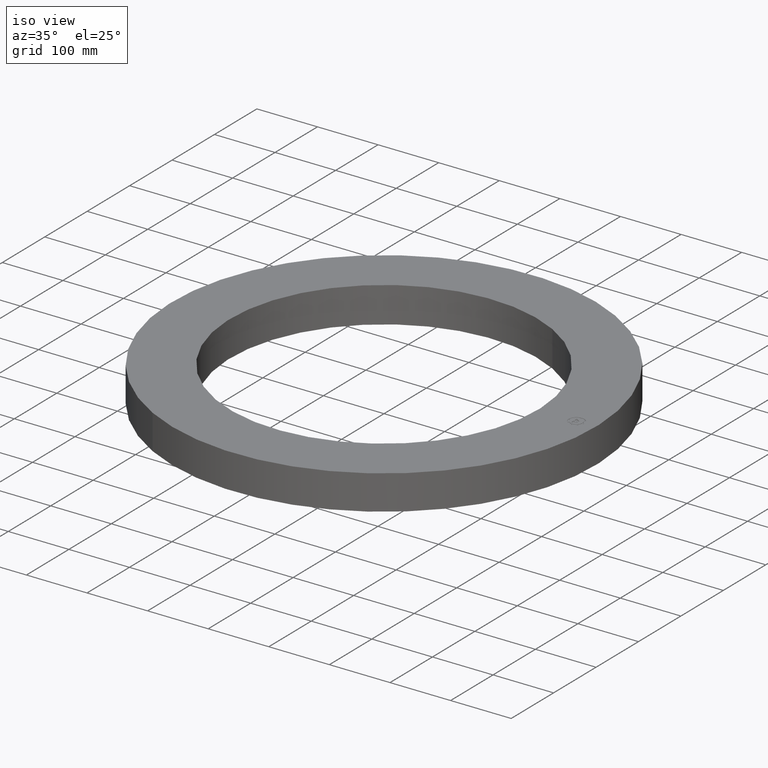
[diagram: clean part render]
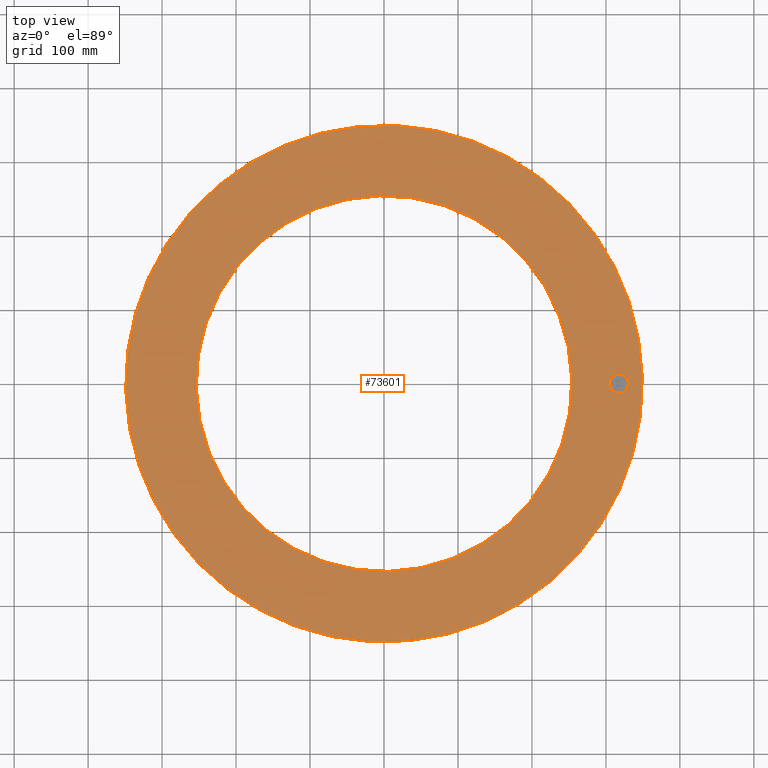
[diagram: tour spotlight — one face highlighted and labeled with its STEP entity id]
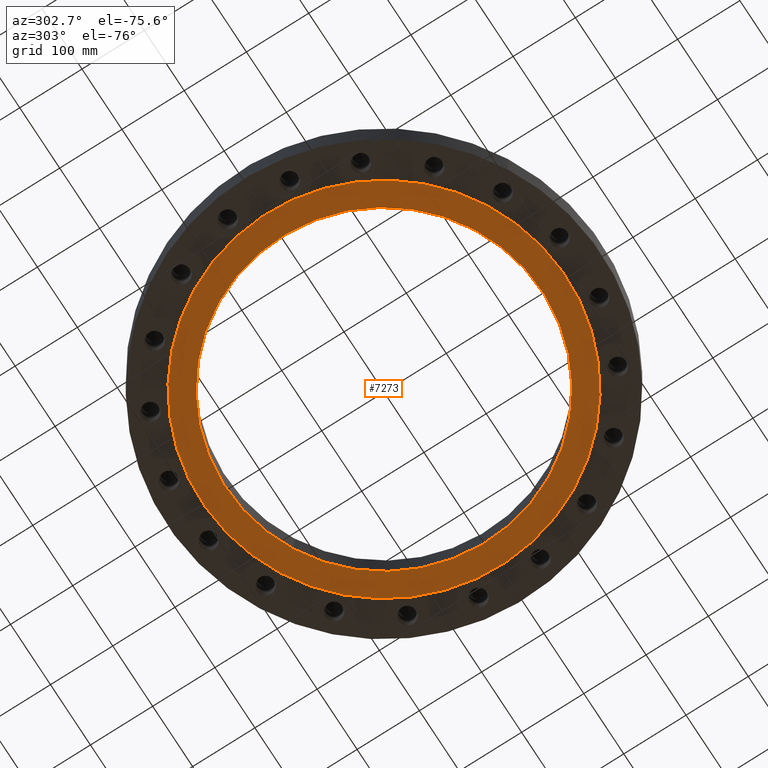
[diagram: tour spotlight — one face highlighted and labeled with its STEP entity id]
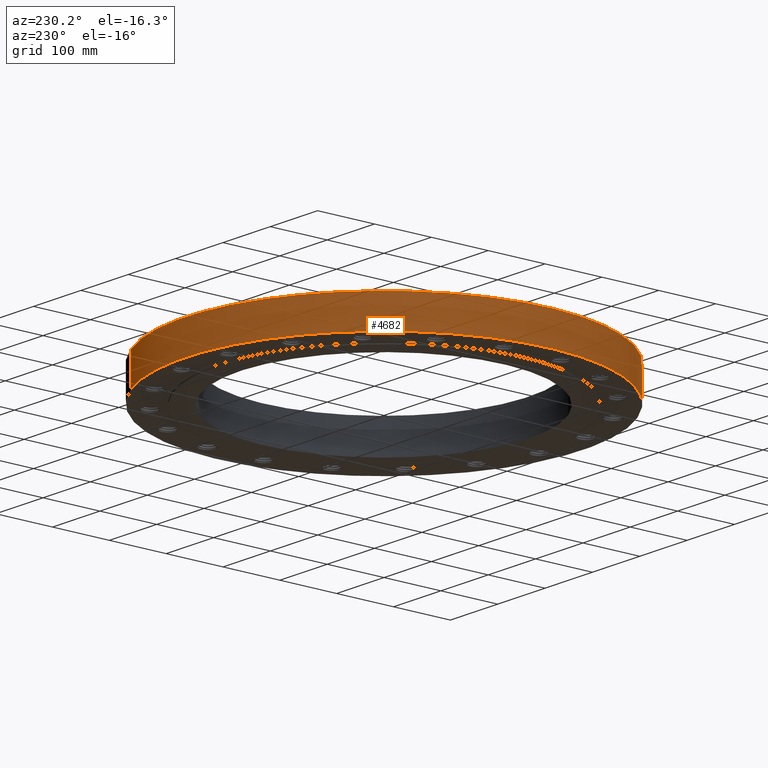
[diagram: tour spotlight — one face highlighted and labeled with its STEP entity id]
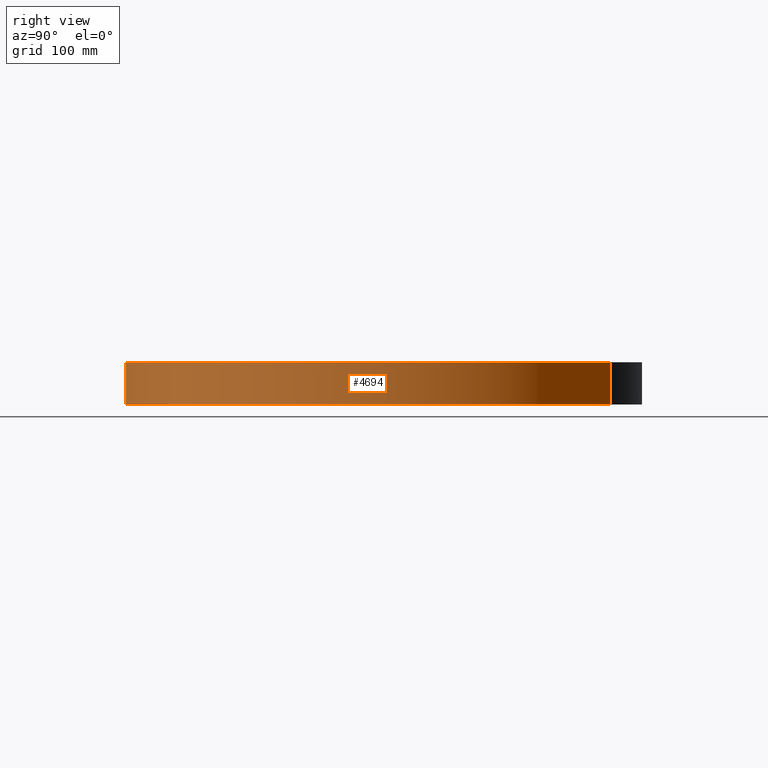
[diagram: tour spotlight — one face highlighted and labeled with its STEP entity id]
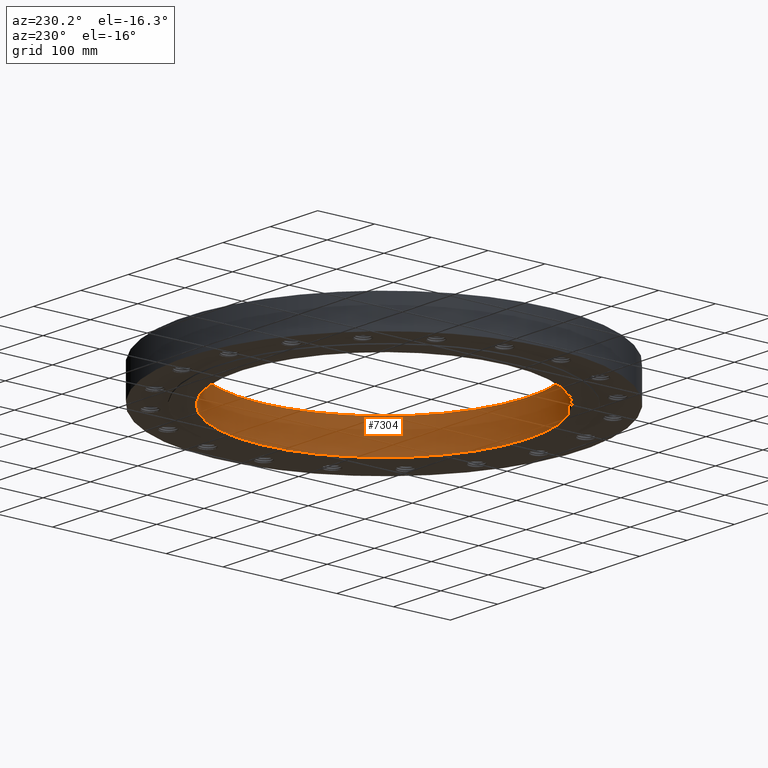
[diagram: tour spotlight — one face highlighted and labeled with its STEP entity id]
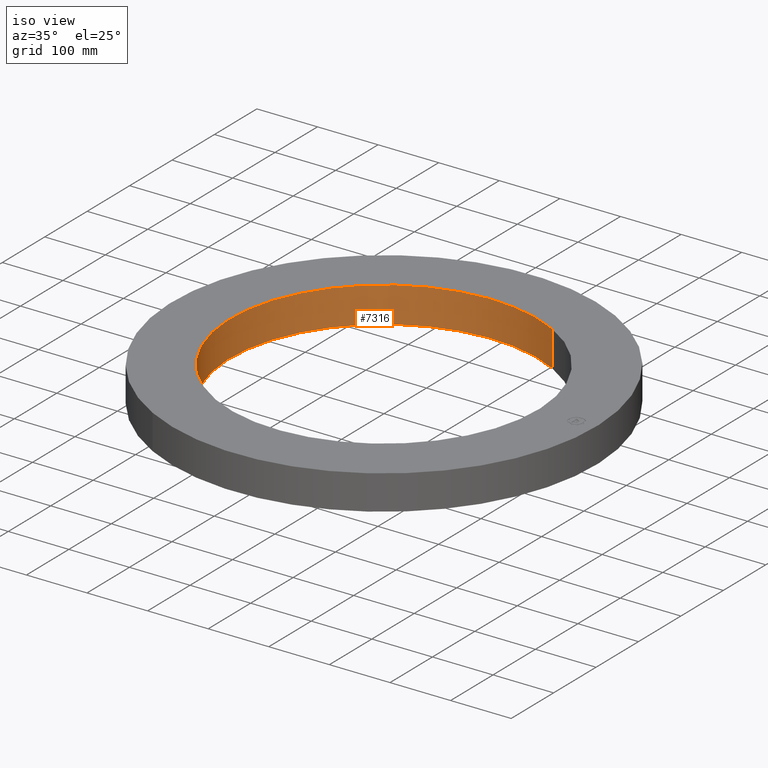
[diagram: tour spotlight — one face highlighted and labeled with its STEP entity id]
A machine part: a face-by-face anatomy tour. The part has 1754 B-rep faces; the first image is the clean iso view, then the 6 largest visible faces are spotlighted one at a time (largest first), each with its STEP entity span.

Face 1 — top view, entity #73601. In plain terms, the highlighted planar face has unit normal (0, 0, -1).
Definition (entity closure, byte-faithful):
#4666=AXIS2_PLACEMENT_3D('Circle Axis2P3D',#4664,#4665,$) ;
#4685=AXIS2_PLACEMENT_3D('Circle Axis2P3D',#4683,#4684,$) ;
#7281=AXIS2_PLACEMENT_3D('Circle Axis2P3D',#7279,#7280,$) ;
#7307=AXIS2_PLACEMENT_3D('Circle Axis2P3D',#7305,#7306,$) ;
#73573=AXIS2_PLACEMENT_3D('Plane Axis2P3D',#73570,#73571,#73572) ;
#73585=AXIS2_PLACEMENT_3D('Circle Axis2P3D',#73583,#73584,$) ;
#73594=AXIS2_PLACEMENT_3D('Circle Axis2P3D',#73592,#73593,$) ;
#4661=CARTESIAN_POINT('Vertex',(-6.59210115583,-12.066760226,2.25000000001)) ;
#4664=CARTESIAN_POINT('Axis2P3D Location',(0.,0.,2.25000000001)) ;
#4668=CARTESIAN_POINT('Vertex',(6.59210115583,12.066760226,2.25000000001)) ;
#4683=CARTESIAN_POINT('Axis2P3D Location',(0.,0.,2.25000000001)) ;
#7279=CARTESIAN_POINT('Axis2P3D Location',(0.,0.,2.25000000001)) ;
#7283=CARTESIAN_POINT('Vertex',(4.79425538606,8.77582561894,2.25000000001)) ;
#7285=CARTESIAN_POINT('Vertex',(-4.79425538606,-8.77582561894,2.25000000001)) ;
#7305=CARTESIAN_POINT('Axis2P3D Location',(0.,0.,2.25000000001)) ;
#73570=CARTESIAN_POINT('Axis2P3D Location',(0.,10.,2.25000000001)) ;
#73583=CARTESIAN_POINT('Axis2P3D Location',(12.5000000001,0.,2.25000000001)) ;
#73587=CARTESIAN_POINT('Vertex',(12.5000000001,-0.499999995002,2.25000000001)) ;
#73589=CARTESIAN_POINT('Vertex',(12.5,0.499999995002,2.25000000001)) ;
#73592=CARTESIAN_POINT('Axis2P3D Location',(12.5000000001,0.,2.25000000001)) ;
#4665=DIRECTION('Axis2P3D Direction',(0.,0.,-0.0393700787402)) ;
#4684=DIRECTION('Axis2P3D Direction',(0.,0.,-0.0393700787402)) ;
#7280=DIRECTION('Axis2P3D Direction',(0.,0.,-0.0393700787402)) ;
#7306=DIRECTION('Axis2P3D Direction',(0.,0.,-0.0393700787402)) ;
#73571=DIRECTION('Axis2P3D Direction',(0.,0.,-0.0393700787402)) ;
#73572=DIRECTION('Axis2P3D XDirection',(0.0393700787402,0.,0.)) ;
#73584=DIRECTION('Axis2P3D Direction',(0.,0.,-0.0393700787402)) ;
#73593=DIRECTION('Axis2P3D Direction',(0.,0.,-0.0393700787402)) ;
#73576=ORIENTED_EDGE('',*,*,#4687,.F.) ;
#73577=ORIENTED_EDGE('',*,*,#4670,.F.) ;
#73580=ORIENTED_EDGE('',*,*,#7309,.T.) ;
#73581=ORIENTED_EDGE('',*,*,#7287,.T.) ;
#73598=ORIENTED_EDGE('',*,*,#73591,.F.) ;
#73599=ORIENTED_EDGE('',*,*,#73596,.F.) ;
#73582=FACE_BOUND('',#73579,.T.) ;
#73600=FACE_BOUND('',#73597,.T.) ;
#73601=ADVANCED_FACE('PartBody',(#73578,#73582,#73600),#73574,.F.) ;
#4667=CIRCLE('generated circle',#4666,13.7500000001) ;
#4686=CIRCLE('generated circle',#4685,13.7500000001) ;
#7282=CIRCLE('generated circle',#7281,10.) ;
#7308=CIRCLE('generated circle',#7307,10.) ;
#73586=CIRCLE('generated circle',#73585,0.499999995002) ;
#73595=CIRCLE('generated circle',#73594,0.499999995002) ;
#4670=EDGE_CURVE('',#4662,#4669,#4667,.T.) ;
#4687=EDGE_CURVE('',#4669,#4662,#4686,.T.) ;
#7287=EDGE_CURVE('',#7284,#7286,#7282,.T.) ;
#7309=EDGE_CURVE('',#7286,#7284,#7308,.T.) ;
#73591=EDGE_CURVE('',#73588,#73590,#73586,.F.) ;
#73596=EDGE_CURVE('',#73590,#73588,#73595,.F.) ;
#73575=EDGE_LOOP('',(#73576,#73577)) ;
#73579=EDGE_LOOP('',(#73580,#73581)) ;
#73597=EDGE_LOOP('',(#73598,#73599)) ;
#73578=FACE_OUTER_BOUND('',#73575,.T.) ;
#73574=PLANE('',#73573) ;
#4662=VERTEX_POINT('',#4661) ;
#4669=VERTEX_POINT('',#4668) ;
#7284=VERTEX_POINT('',#7283) ;
#7286=VERTEX_POINT('',#7285) ;
#73588=VERTEX_POINT('',#73587) ;
#73590=VERTEX_POINT('',#73589) ;

Face 2 — auxiliary view, entity #7273. In plain terms, the highlighted planar face has unit normal (0, 0, -1).
Definition (entity closure, byte-faithful):
#4702=AXIS2_PLACEMENT_3D('Circle Axis2P3D',#4700,#4701,$) ;
#4728=AXIS2_PLACEMENT_3D('Circle Axis2P3D',#4726,#4727,$) ;
#7249=AXIS2_PLACEMENT_3D('Plane Axis2P3D',#7246,#7247,#7248) ;
#7257=AXIS2_PLACEMENT_3D('Circle Axis2P3D',#7255,#7256,$) ;
#7266=AXIS2_PLACEMENT_3D('Circle Axis2P3D',#7264,#7265,$) ;
#4700=CARTESIAN_POINT('Axis2P3D Location',(0.,0.,-0.0625000000003)) ;
#4704=CARTESIAN_POINT('Vertex',(5.51339369397,10.0921994618,-0.0625000000003)) ;
#4706=CARTESIAN_POINT('Vertex',(-5.51339369397,-10.0921994618,-0.0625000000003)) ;
#4726=CARTESIAN_POINT('Axis2P3D Location',(0.,0.,-0.0625000000003)) ;
#7246=CARTESIAN_POINT('Axis2P3D Location',(0.,11.5,-0.0625000000003)) ;
#7255=CARTESIAN_POINT('Axis2P3D Location',(0.,0.,-0.0625000000003)) ;
#7259=CARTESIAN_POINT('Vertex',(4.79425538606,8.77582561894,-0.0625000000002)) ;
#7261=CARTESIAN_POINT('Vertex',(-4.79425538606,-8.77582561894,-0.0625000000002)) ;
#7264=CARTESIAN_POINT('Axis2P3D Location',(0.,0.,-0.0625000000003)) ;
#4701=DIRECTION('Axis2P3D Direction',(0.,0.,-0.0393700787402)) ;
#4727=DIRECTION('Axis2P3D Direction',(0.,0.,-0.0393700787402)) ;
#7247=DIRECTION('Axis2P3D Direction',(0.,0.,-0.0393700787402)) ;
#7248=DIRECTION('Axis2P3D XDirection',(0.0393700787402,0.,0.)) ;
#7256=DIRECTION('Axis2P3D Direction',(0.,0.,-0.0393700787402)) ;
#7265=DIRECTION('Axis2P3D Direction',(0.,0.,-0.0393700787402)) ;
#7252=ORIENTED_EDGE('',*,*,#4730,.T.) ;
#7253=ORIENTED_EDGE('',*,*,#4708,.T.) ;
#7270=ORIENTED_EDGE('',*,*,#7263,.F.) ;
#7271=ORIENTED_EDGE('',*,*,#7268,.F.) ;
#7272=FACE_BOUND('',#7269,.T.) ;
#7273=ADVANCED_FACE('PartBody',(#7254,#7272),#7250,.T.) ;
#4703=CIRCLE('generated circle',#4702,11.5) ;
#4729=CIRCLE('generated circle',#4728,11.5) ;
#7258=CIRCLE('generated circle',#7257,10.) ;
#7267=CIRCLE('generated circle',#7266,10.) ;
#4708=EDGE_CURVE('',#4705,#4707,#4703,.T.) ;
#4730=EDGE_CURVE('',#4707,#4705,#4729,.T.) ;
#7263=EDGE_CURVE('',#7260,#7262,#7258,.T.) ;
#7268=EDGE_CURVE('',#7262,#7260,#7267,.T.) ;
#7251=EDGE_LOOP('',(#7252,#7253)) ;
#7269=EDGE_LOOP('',(#7270,#7271)) ;
#7254=FACE_OUTER_BOUND('',#7251,.T.) ;
#7250=PLANE('',#7249) ;
#4705=VERTEX_POINT('',#4704) ;
#4707=VERTEX_POINT('',#4706) ;
#7260=VERTEX_POINT('',#7259) ;
#7262=VERTEX_POINT('',#7261) ;

Face 3 — auxiliary view, entity #4682. In plain terms, the highlighted cylindrical surface (partial cylindrical patch) has radius 349.25 mm, axis along (0, 0, -1).
Definition (entity closure, byte-faithful):
#3698=AXIS2_PLACEMENT_3D('Circle Axis2P3D',#3696,#3697,$) ;
#4655=AXIS2_PLACEMENT_3D('Cylinder Axis2P3D',#4652,#4653,#4654) ;
#4666=AXIS2_PLACEMENT_3D('Circle Axis2P3D',#4664,#4665,$) ;
#3696=CARTESIAN_POINT('Axis2P3D Location',(0.,0.,0.)) ;
#3700=CARTESIAN_POINT('Vertex',(-6.59210115583,-12.066760226,-4.9234457281E-014)) ;
#3702=CARTESIAN_POINT('Vertex',(6.59210115583,12.066760226,-4.9234457281E-014)) ;
#4652=CARTESIAN_POINT('Axis2P3D Location',(0.,0.,1.09375)) ;
#4657=CARTESIAN_POINT('Line Origine',(-6.59210115583,-12.066760226,1.125)) ;
#4661=CARTESIAN_POINT('Vertex',(-6.59210115583,-12.066760226,2.25000000001)) ;
#4664=CARTESIAN_POINT('Axis2P3D Location',(0.,0.,2.25000000001)) ;
#4668=CARTESIAN_POINT('Vertex',(6.59210115583,12.066760226,2.25000000001)) ;
#4671=CARTESIAN_POINT('Line Origine',(6.59210115583,12.066760226,1.125)) ;
#3697=DIRECTION('Axis2P3D Direction',(0.,0.,-0.0393700787402)) ;
#4653=DIRECTION('Axis2P3D Direction',(0.,0.,-0.0393700787402)) ;
#4654=DIRECTION('Axis2P3D XDirection',(0.0188750212049,0.0345504945626,0.)) ;
#4658=DIRECTION('Vector Direction',(0.,0.,-0.0393700787402)) ;
#4665=DIRECTION('Axis2P3D Direction',(0.,0.,-0.0393700787402)) ;
#4672=DIRECTION('Vector Direction',(0.,0.,-0.0393700787402)) ;
#4659=VECTOR('Line Direction',#4658,0.0393700787402) ;
#4673=VECTOR('Line Direction',#4672,0.0393700787402) ;
#4677=ORIENTED_EDGE('',*,*,#3704,.F.) ;
#4678=ORIENTED_EDGE('',*,*,#4663,.T.) ;
#4679=ORIENTED_EDGE('',*,*,#4670,.T.) ;
#4680=ORIENTED_EDGE('',*,*,#4675,.F.) ;
#4682=ADVANCED_FACE('PartBody',(#4681),#4656,.T.) ;
#3699=CIRCLE('generated circle',#3698,13.7500000001) ;
#4667=CIRCLE('generated circle',#4666,13.7500000001) ;
#4656=CYLINDRICAL_SURFACE('generated cylinder',#4655,13.7500000001) ;
#3704=EDGE_CURVE('',#3701,#3703,#3699,.T.) ;
#4663=EDGE_CURVE('',#3701,#4662,#4660,.F.) ;
#4670=EDGE_CURVE('',#4662,#4669,#4667,.T.) ;
#4675=EDGE_CURVE('',#3703,#4669,#4674,.F.) ;
#4676=EDGE_LOOP('',(#4677,#4678,#4679,#4680)) ;
#4681=FACE_OUTER_BOUND('',#4676,.T.) ;
#4660=LINE('Line',#4657,#4659) ;
#4674=LINE('Line',#4671,#4673) ;
#3701=VERTEX_POINT('',#3700) ;
#3703=VERTEX_POINT('',#3702) ;
#4662=VERTEX_POINT('',#4661) ;
#4669=VERTEX_POINT('',#4668) ;

Face 4 — right view, entity #4694. In plain terms, the highlighted cylindrical surface (partial cylindrical patch) has radius 349.25 mm, axis along (0, 0, -1).
Definition (entity closure, byte-faithful):
#3707=AXIS2_PLACEMENT_3D('Circle Axis2P3D',#3705,#3706,$) ;
#4655=AXIS2_PLACEMENT_3D('Cylinder Axis2P3D',#4652,#4653,#4654) ;
#4685=AXIS2_PLACEMENT_3D('Circle Axis2P3D',#4683,#4684,$) ;
#3700=CARTESIAN_POINT('Vertex',(-6.59210115583,-12.066760226,-4.9234457281E-014)) ;
#3702=CARTESIAN_POINT('Vertex',(6.59210115583,12.066760226,-4.9234457281E-014)) ;
#3705=CARTESIAN_POINT('Axis2P3D Location',(0.,0.,0.)) ;
#4652=CARTESIAN_POINT('Axis2P3D Location',(0.,0.,1.09375)) ;
#4657=CARTESIAN_POINT('Line Origine',(-6.59210115583,-12.066760226,1.125)) ;
#4661=CARTESIAN_POINT('Vertex',(-6.59210115583,-12.066760226,2.25000000001)) ;
#4668=CARTESIAN_POINT('Vertex',(6.59210115583,12.066760226,2.25000000001)) ;
#4671=CARTESIAN_POINT('Line Origine',(6.59210115583,12.066760226,1.125)) ;
#4683=CARTESIAN_POINT('Axis2P3D Location',(0.,0.,2.25000000001)) ;
#3706=DIRECTION('Axis2P3D Direction',(0.,0.,-0.0393700787402)) ;
#4653=DIRECTION('Axis2P3D Direction',(0.,0.,-0.0393700787402)) ;
#4654=DIRECTION('Axis2P3D XDirection',(0.0188750212049,0.0345504945626,0.)) ;
#4658=DIRECTION('Vector Direction',(0.,0.,-0.0393700787402)) ;
#4672=DIRECTION('Vector Direction',(0.,0.,-0.0393700787402)) ;
#4684=DIRECTION('Axis2P3D Direction',(0.,0.,-0.0393700787402)) ;
#4659=VECTOR('Line Direction',#4658,0.0393700787402) ;
#4673=VECTOR('Line Direction',#4672,0.0393700787402) ;
#4689=ORIENTED_EDGE('',*,*,#3709,.F.) ;
#4690=ORIENTED_EDGE('',*,*,#4675,.T.) ;
#4691=ORIENTED_EDGE('',*,*,#4687,.T.) ;
#4692=ORIENTED_EDGE('',*,*,#4663,.F.) ;
#4694=ADVANCED_FACE('PartBody',(#4693),#4656,.T.) ;
#3708=CIRCLE('generated circle',#3707,13.7500000001) ;
#4686=CIRCLE('generated circle',#4685,13.7500000001) ;
#4656=CYLINDRICAL_SURFACE('generated cylinder',#4655,13.7500000001) ;
#3709=EDGE_CURVE('',#3703,#3701,#3708,.T.) ;
#4663=EDGE_CURVE('',#3701,#4662,#4660,.F.) ;
#4675=EDGE_CURVE('',#3703,#4669,#4674,.F.) ;
#4687=EDGE_CURVE('',#4669,#4662,#4686,.T.) ;
#4688=EDGE_LOOP('',(#4689,#4690,#4691,#4692)) ;
#4693=FACE_OUTER_BOUND('',#4688,.T.) ;
#4660=LINE('Line',#4657,#4659) ;
#4674=LINE('Line',#4671,#4673) ;
#3701=VERTEX_POINT('',#3700) ;
#3703=VERTEX_POINT('',#3702) ;
#4662=VERTEX_POINT('',#4661) ;
#4669=VERTEX_POINT('',#4668) ;

Face 5 — auxiliary view, entity #7304. In plain terms, the highlighted cylindrical surface (partial cylindrical patch) has radius 254 mm, axis along (0, 0, -1).
Definition (entity closure, byte-faithful):
#7257=AXIS2_PLACEMENT_3D('Circle Axis2P3D',#7255,#7256,$) ;
#7277=AXIS2_PLACEMENT_3D('Cylinder Axis2P3D',#7274,#7275,#7276) ;
#7281=AXIS2_PLACEMENT_3D('Circle Axis2P3D',#7279,#7280,$) ;
#7255=CARTESIAN_POINT('Axis2P3D Location',(0.,0.,-0.0625000000003)) ;
#7259=CARTESIAN_POINT('Vertex',(4.79425538606,8.77582561894,-0.0625000000002)) ;
#7261=CARTESIAN_POINT('Vertex',(-4.79425538606,-8.77582561894,-0.0625000000002)) ;
#7274=CARTESIAN_POINT('Axis2P3D Location',(0.,0.,1.09375)) ;
#7279=CARTESIAN_POINT('Axis2P3D Location',(0.,0.,2.25000000001)) ;
#7283=CARTESIAN_POINT('Vertex',(4.79425538606,8.77582561894,2.25000000001)) ;
#7285=CARTESIAN_POINT('Vertex',(-4.79425538606,-8.77582561894,2.25000000001)) ;
#7288=CARTESIAN_POINT('Line Origine',(4.79425538606,8.77582561894,1.09375)) ;
#7293=CARTESIAN_POINT('Line Origine',(-4.79425538606,-8.77582561894,1.09375)) ;
#7256=DIRECTION('Axis2P3D Direction',(0.,0.,-0.0393700787402)) ;
#7275=DIRECTION('Axis2P3D Direction',(0.,0.,-0.0393700787402)) ;
#7276=DIRECTION('Axis2P3D XDirection',(-0.0188750212049,-0.0345504945626,0.)) ;
#7280=DIRECTION('Axis2P3D Direction',(0.,0.,-0.0393700787402)) ;
#7289=DIRECTION('Vector Direction',(0.,0.,-0.0393700787402)) ;
#7294=DIRECTION('Vector Direction',(0.,0.,-0.0393700787402)) ;
#7290=VECTOR('Line Direction',#7289,0.0393700787402) ;
#7295=VECTOR('Line Direction',#7294,0.0393700787402) ;
#7299=ORIENTED_EDGE('',*,*,#7287,.F.) ;
#7300=ORIENTED_EDGE('',*,*,#7292,.T.) ;
#7301=ORIENTED_EDGE('',*,*,#7263,.T.) ;
#7302=ORIENTED_EDGE('',*,*,#7297,.F.) ;
#7304=ADVANCED_FACE('PartBody',(#7303),#7278,.F.) ;
#7258=CIRCLE('generated circle',#7257,10.) ;
#7282=CIRCLE('generated circle',#7281,10.) ;
#7278=CYLINDRICAL_SURFACE('generated cylinder',#7277,10.) ;
#7263=EDGE_CURVE('',#7260,#7262,#7258,.T.) ;
#7287=EDGE_CURVE('',#7284,#7286,#7282,.T.) ;
#7292=EDGE_CURVE('',#7284,#7260,#7291,.T.) ;
#7297=EDGE_CURVE('',#7286,#7262,#7296,.T.) ;
#7298=EDGE_LOOP('',(#7299,#7300,#7301,#7302)) ;
#7303=FACE_OUTER_BOUND('',#7298,.T.) ;
#7291=LINE('Line',#7288,#7290) ;
#7296=LINE('Line',#7293,#7295) ;
#7260=VERTEX_POINT('',#7259) ;
#7262=VERTEX_POINT('',#7261) ;
#7284=VERTEX_POINT('',#7283) ;
#7286=VERTEX_POINT('',#7285) ;

Face 6 — iso view, entity #7316. In plain terms, the highlighted cylindrical surface (partial cylindrical patch) has radius 254 mm, axis along (0, 0, -1).
Definition (entity closure, byte-faithful):
#7266=AXIS2_PLACEMENT_3D('Circle Axis2P3D',#7264,#7265,$) ;
#7277=AXIS2_PLACEMENT_3D('Cylinder Axis2P3D',#7274,#7275,#7276) ;
#7307=AXIS2_PLACEMENT_3D('Circle Axis2P3D',#7305,#7306,$) ;
#7259=CARTESIAN_POINT('Vertex',(4.79425538606,8.77582561894,-0.0625000000002)) ;
#7261=CARTESIAN_POINT('Vertex',(-4.79425538606,-8.77582561894,-0.0625000000002)) ;
#7264=CARTESIAN_POINT('Axis2P3D Location',(0.,0.,-0.0625000000003)) ;
#7274=CARTESIAN_POINT('Axis2P3D Location',(0.,0.,1.09375)) ;
#7283=CARTESIAN_POINT('Vertex',(4.79425538606,8.77582561894,2.25000000001)) ;
#7285=CARTESIAN_POINT('Vertex',(-4.79425538606,-8.77582561894,2.25000000001)) ;
#7288=CARTESIAN_POINT('Line Origine',(4.79425538606,8.77582561894,1.09375)) ;
#7293=CARTESIAN_POINT('Line Origine',(-4.79425538606,-8.77582561894,1.09375)) ;
#7305=CARTESIAN_POINT('Axis2P3D Location',(0.,0.,2.25000000001)) ;
#7265=DIRECTION('Axis2P3D Direction',(0.,0.,-0.0393700787402)) ;
#7275=DIRECTION('Axis2P3D Direction',(0.,0.,-0.0393700787402)) ;
#7276=DIRECTION('Axis2P3D XDirection',(-0.0188750212049,-0.0345504945626,0.)) ;
#7289=DIRECTION('Vector Direction',(0.,0.,-0.0393700787402)) ;
#7294=DIRECTION('Vector Direction',(0.,0.,-0.0393700787402)) ;
#7306=DIRECTION('Axis2P3D Direction',(0.,0.,-0.0393700787402)) ;
#7290=VECTOR('Line Direction',#7289,0.0393700787402) ;
#7295=VECTOR('Line Direction',#7294,0.0393700787402) ;
#7311=ORIENTED_EDGE('',*,*,#7309,.F.) ;
#7312=ORIENTED_EDGE('',*,*,#7297,.T.) ;
#7313=ORIENTED_EDGE('',*,*,#7268,.T.) ;
#7314=ORIENTED_EDGE('',*,*,#7292,.F.) ;
#7316=ADVANCED_FACE('PartBody',(#7315),#7278,.F.) ;
#7267=CIRCLE('generated circle',#7266,10.) ;
#7308=CIRCLE('generated circle',#7307,10.) ;
#7278=CYLINDRICAL_SURFACE('generated cylinder',#7277,10.) ;
#7268=EDGE_CURVE('',#7262,#7260,#7267,.T.) ;
#7292=EDGE_CURVE('',#7284,#7260,#7291,.T.) ;
#7297=EDGE_CURVE('',#7286,#7262,#7296,.T.) ;
#7309=EDGE_CURVE('',#7286,#7284,#7308,.T.) ;
#7310=EDGE_LOOP('',(#7311,#7312,#7313,#7314)) ;
#7315=FACE_OUTER_BOUND('',#7310,.T.) ;
#7291=LINE('Line',#7288,#7290) ;
#7296=LINE('Line',#7293,#7295) ;
#7260=VERTEX_POINT('',#7259) ;
#7262=VERTEX_POINT('',#7261) ;
#7284=VERTEX_POINT('',#7283) ;
#7286=VERTEX_POINT('',#7285) ;